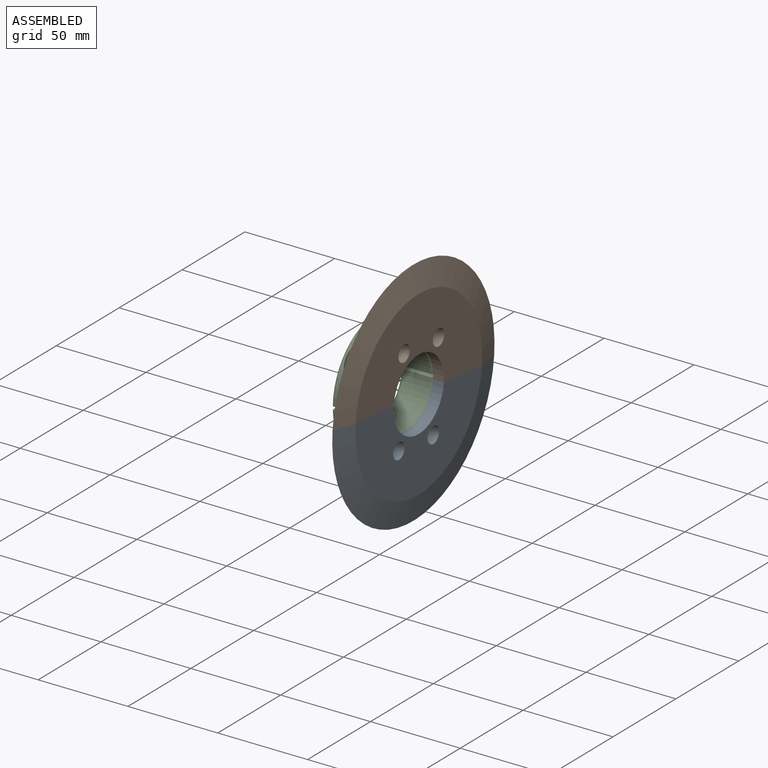
[diagram: assembled view]
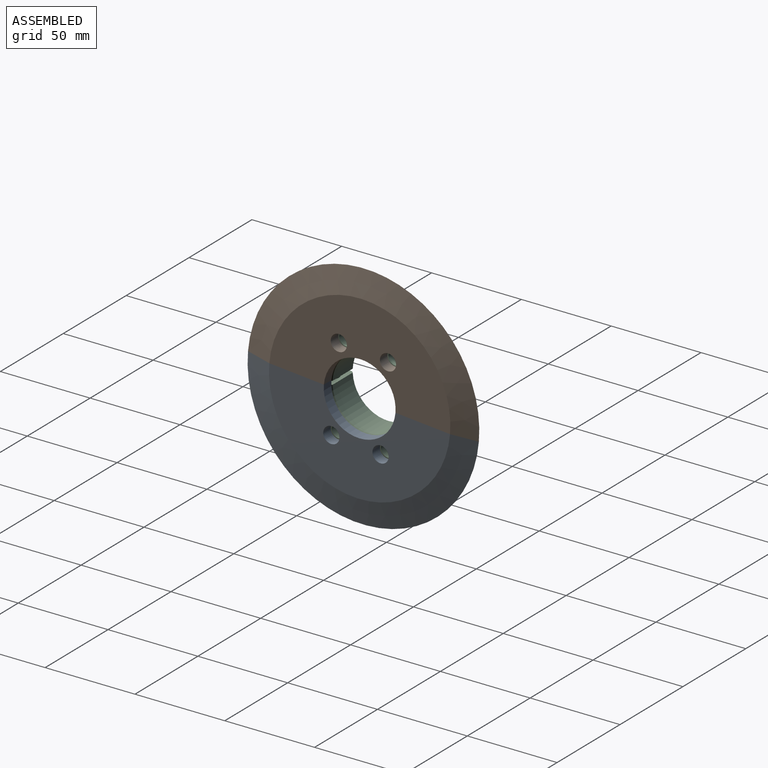
[diagram: assembled view, second angle]
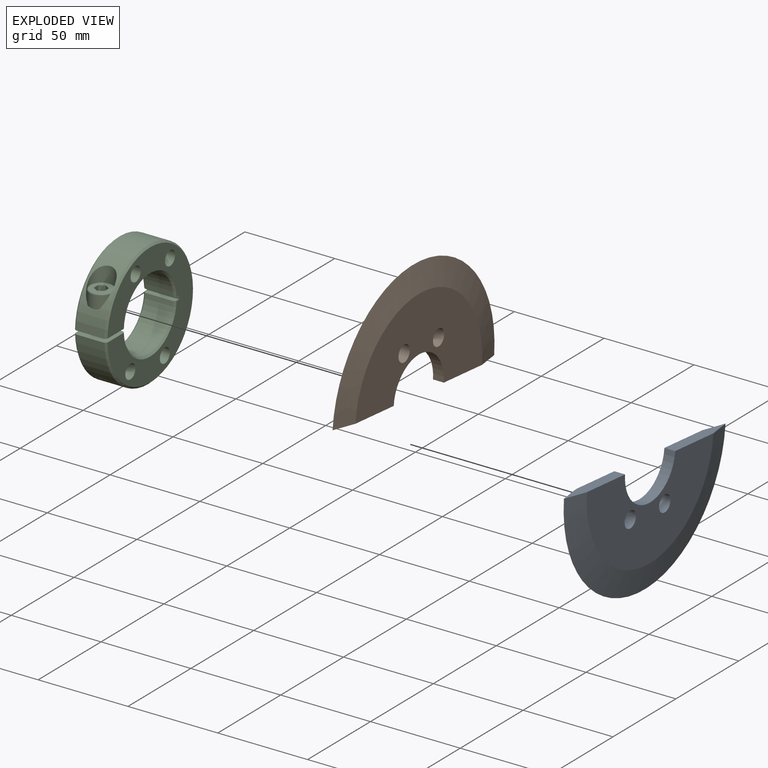
[diagram: exploded view]
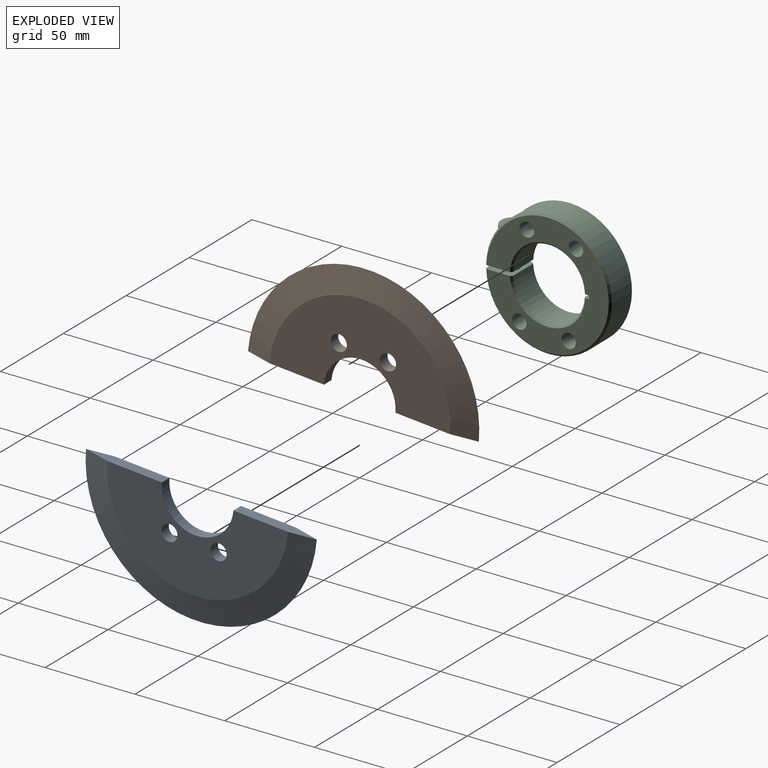
[diagram: exploded view, second angle]
ASSEMBLY  parts=3 mates=6
PART A: 9 faces, bbox 6x129x64.5 mm
  f0: plane 101x50.5mm, normal (1,0,0), area 3250.4mm2, adj f1,f4,f5,f6,f7,f8
  f1: cone r=64.5mm half-angle=77.9deg, axis (-1,0,0), area 2586.4mm2, adj f0,f2,f5,f6
  f2: cone r=50.5mm half-angle=77.9deg, axis (1,0,0), area 2586.4mm2, adj f1,f3,f5,f6
  f3: plane 101x50.5mm, normal (-1,0,0), area 3250.4mm2, adj f2,f4,f5,f6,f7,f8
  f4: cylinder r=20mm len=40mm, axis (1,0,0), area 377mm2, adj f0,f3,f5,f6
  f5: plane 44.5x6mm, normal (0,0,-1), area 225mm2, adj f0,f1,f2,f3,f4
  f6: plane 44.5x6mm, normal (0,0,-1), area 225mm2, adj f0,f1,f2,f3,f4
  f7: cylinder r=4.5mm len=9mm, axis (-1,0,0), area 169.6mm2, adj f0,f3
  f8: cylinder r=4.5mm len=9mm, axis (-1,0,0), area 169.6mm2, adj f0,f3
PART B: same geometry as A
PART C: 52 faces, bbox 18x70x70 mm
  f0: cone r=0mm half-angle=60deg, axis (0,0,1), area 32.6mm2, adj f1,f2,f3,f4,f5,f6
  f1: plane 3x0.87mm, normal (0,0,1), area 0.5mm2, adj f0,f7,f8
  f2: plane 2.6x1.5mm, normal (0,0,1), area 0.5mm2, adj f0,f8,f9
  f3: plane 2.6x1.5mm, normal (0,0,1), area 0.5mm2, adj f0,f9,f10
  f4: plane 3x0.87mm, normal (0,0,1), area 0.5mm2, adj f0,f10,f11
  f5: plane 2.6x1.5mm, normal (0,0,1), area 0.5mm2, adj f0,f11,f12
  f6: plane 2.6x1.5mm, normal (0,0,1), area 0.5mm2, adj f0,f7,f12
  f7: plane 4.7x3mm, normal (0.5,-0.87,0), area 16.3mm2, adj f1,f6,f8,f12,f13
  f8: plane 4.7x3mm, normal (-0.5,-0.87,0), area 16.3mm2, adj f1,f2,f7,f9,f13
  f9: plane 4.7x3.46mm, normal (-1,0,0), area 16.3mm2, adj f2,f3,f8,f10,f13
  f10: plane 4.7x3mm, normal (-0.5,0.87,0), area 16.3mm2, adj f3,f4,f9,f11,f13
  f11: plane 4.7x3mm, normal (0.5,0.87,0), area 16.3mm2, adj f4,f5,f10,f12,f13
  f12: plane 4.7x3.46mm, normal (1,0,0), area 16.3mm2, adj f5,f6,f7,f11,f13
  f13: plane 11.4x11.4mm, normal (0,0,1), area 70.9mm2, adj f7,f8,f9,f10,f11,f12,f14
  f14: torus R=5.7mm, axis (0,0,-1), area 49mm2, adj f13,f15
  f15: cylinder r=6.5mm len=13mm, axis (0,0,-1), area 294.1mm2, adj f14,f16,f17
  f16: cylinder r=35mm len=70mm, axis (1,0,0), area 3245.1mm2, adj f15,f17,f18,f19,f20,f21,f22,f23
  f17: plane 14x13.5mm, normal (0,0,1), area 19.4mm2, adj f15,f16,f24,f25
  f18: cone r=0mm half-angle=45deg, axis (-1,0,0), area 75.2mm2, adj f16,f19,f23,f26
  f19: cone r=0mm half-angle=45deg, axis (-1,0,0), area 228.5mm2, adj f16,f18,f20,f26
  f20: plane 18x15.01mm, normal (0,0,1), area 217.9mm2, adj f16,f19,f21,f26,f27,f28,f29,f30
  f21: cone r=0mm half-angle=45deg, axis (1,0,0), area 75.2mm2, adj f16,f20,f22,f30
  f22: cone r=0mm half-angle=45deg, axis (1,0,0), area 228.5mm2, adj f16,f21,f23,f30
  f23: plane 18x15.01mm, normal (0,0,-1), area 204.6mm2, adj f16,f18,f22,f26,f30,f32,f33,f34
  f24: cylinder r=7mm len=10.43mm, axis (0,0,1), area 43.4mm2, adj f16,f17,f25
  f25: cylinder r=7mm len=16.39mm, axis (0,0,1), area 360.6mm2, adj f16,f17,f24
  f26: plane 68x67.99mm, normal (1,0,0), area 2015.2mm2, adj f18,f19,f20,f23,f31,f35,f36,f37
  f27: cylinder r=4mm len=12.98mm, axis (0,0,-1), area 326.2mm2, adj f20,f44
  f28: cylinder r=20mm len=39.95mm, axis (1,0,0), area 973.3mm2, adj f20,f29,f31,f40,f41
  f29: cone r=0mm half-angle=45deg, axis (-1,0,0), area 88.2mm2, adj f20,f28,f30,f40
  f30: plane 68x67.99mm, normal (-1,0,0), area 2015.2mm2, adj f20,f21,f22,f23,f29,f33,f36,f37
  f31: cone r=0mm half-angle=45deg, axis (1,0,0), area 44.1mm2, adj f20,f26,f28,f41
  f32: cylinder r=4.5mm len=11.99mm, axis (0,0,1), area 338.9mm2, adj f23,f46
  f33: cone r=0mm half-angle=45deg, axis (-1,0,0), area 44.1mm2, adj f23,f30,f34,f45
  f34: cylinder r=20mm len=39.95mm, axis (1,0,0), area 973.3mm2, adj f23,f33,f35,f42,f45
  f35: cone r=0mm half-angle=45deg, axis (1,0,0), area 88.2mm2, adj f23,f26,f34,f42
  f36: cylinder r=4mm len=18mm, axis (-1,0,0), area 452.4mm2, adj f26,f30
  f37: cylinder r=4mm len=18mm, axis (-1,0,0), area 452.4mm2, adj f26,f30
  f38: cylinder r=4mm len=18mm, axis (-1,0,0), area 452.4mm2, adj f26,f30
  f39: cylinder r=4mm len=18mm, axis (-1,0,0), area 452.4mm2, adj f26,f30
  f40: plane 18x3.03mm, normal (0,0,1), area 53.4mm2, adj f26,f28,f29,f30,f41,f43
  f41: cone r=0mm half-angle=45deg, axis (1,0,0), area 44.1mm2, adj f26,f28,f31,f40
  f42: plane 18x3.03mm, normal (0,0,-1), area 53.4mm2, adj f26,f30,f34,f35,f43,f45
  f43: plane 18x2mm, normal (0,-1,0), area 36mm2, adj f26,f30,f40,f42
  f44: torus R=4.4mm, axis (0,0,-1), area 3.1mm2, adj f27,f47
  f45: cone r=0mm half-angle=45deg, axis (-1,0,0), area 44.1mm2, adj f30,f33,f34,f42
  f46: torus R=4.6mm, axis (0,0,-1), area 11mm2, adj f32,f47
  f47: cone r=0mm half-angle=17.9deg, axis (0,0,1), area 16.9mm2, adj f44,f46
  f48: cylinder r=3.32mm len=9.75mm, axis (0,0,-1), area 130.5mm2, adj f49,f50
  f49: cone r=0mm half-angle=45deg, axis (0,0,1), area 2.6mm2, adj f48,f51
  f50: cylinder r=35mm len=7.55mm, axis (1,0,0), area 52.5mm2, adj f48
  f51: plane 6.47x6.47mm, normal (0,0,-1), area 32.8mm2, adj f49
PLACE A rot(axis=(0,-1,0.04),180deg) t=(-7.81,-16.2,42.04)mm
PLACE B rot(axis=(-1,0,0),5deg) t=(-1.81,-16.2,42.04)mm
PLACE C t=(-16.81,-16.2,42.04)mm fixed
MATE planar B.f3 <-> C.f37  axis (-1,0,0) through (-7.81,-14.12,65.79)mm
MATE cylindrical C.f36 <-> A.f7  axis (-1,0,0) through (-16.81,-31.97,19.51)mm
MATE cylindrical B.f8 <-> C.f37  axis (-1,0,0) through (-4.81,-0.42,64.56)mm
MATE planar A.f3 <-> B.f0  axis (1,0,0) through (-1.81,-18.27,18.29)mm
MATE cylindrical C.f38 <-> A.f8  axis (-1,0,0) through (-16.81,-4.57,17.11)mm
MATE cylindrical B.f7 <-> C.f39  axis (1,0,0) through (-1.81,-27.82,66.96)mm
